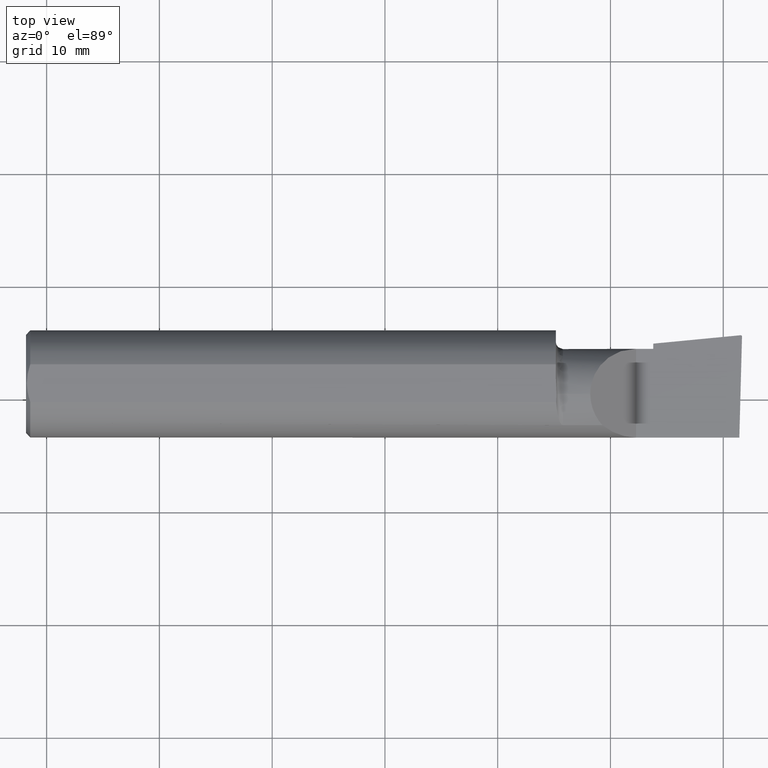
[diagram: clean part render]
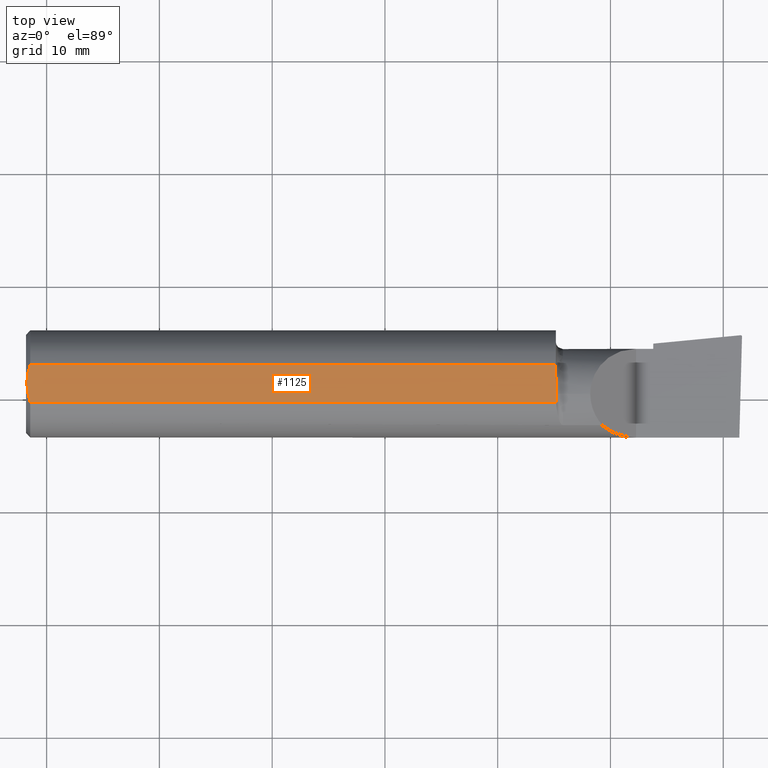
[diagram: same view with one face highlighted and labeled with its STEP entity id]
A machine part, top view. The second image highlights one B-rep face of the part: STEP entity #1125.
In plain terms, the highlighted planar face has unit normal (0, 0, -1).
Its self-contained STEP definition (entity closure, byte-faithful):
#7 = CARTESIAN_POINT ( 'NONE',  ( 1.851937530487825168, -0.03734999999999997350, 0.1753499999999999504 ) ) ;
#14 = VERTEX_POINT ( 'NONE', #1193 ) ;
#16 = CARTESIAN_POINT ( 'NONE',  ( 1.851937530487825168, -0.03734999999999997350, 0.1753499999999999504 ) ) ;
#31 = VECTOR ( 'NONE', #447, 39.37007874015748143 ) ;
#50 = VECTOR ( 'NONE', #425, 39.37007874015748143 ) ;
#61 = CARTESIAN_POINT ( 'NONE',  ( 2.500000000000000000, -0.06597272163553667690, 0.1753499999999999504 ) ) ;
#84 = CARTESIAN_POINT ( 'NONE',  ( 2.500000000000000000, 0.06597272163553667690, 0.1753499999999999504 ) ) ;
#128 = VERTEX_POINT ( 'NONE', #16 ) ;
#140 = PLANE ( 'NONE',  #280 ) ;
#151 = DIRECTION ( 'NONE',  ( -0.000000000000000000, 0.000000000000000000, -1.000000000000000000 ) ) ;
#198 = EDGE_CURVE ( 'NONE', #810, #1157, #704, .T. ) ;
#201 = CARTESIAN_POINT ( 'NONE',  ( 1.851937530487825168, -0.04689278429336164733, 0.1753499999999999504 ) ) ;
#254 = CARTESIAN_POINT ( 'NONE',  ( 1.850000000000000311, 0.06597272163553667690, 0.1753499999999999504 ) ) ;
#280 = AXIS2_PLACEMENT_3D ( 'NONE', #744, #151, #927 ) ;
#317 = EDGE_CURVE ( 'NONE', #874, #810, #1156, .T. ) ;
#318 = ORIENTED_EDGE ( 'NONE', *, *, #317, .T. ) ;
#354 = CARTESIAN_POINT ( 'NONE',  ( 1.851545130889652668, -0.01769637300185313705, 0.1753499999999999781 ) ) ;
#365 = CARTESIAN_POINT ( 'NONE',  ( 1.850566974906936224, 0.001953606026207257377, 0.1753499999999999504 ) ) ;
#395 = CARTESIAN_POINT ( 'NONE',  ( 0.01499999999999970281, 0.06597272163553667690, 0.1753499999999999504 ) ) ;
#400 = CARTESIAN_POINT ( 'NONE',  ( 0.002999999999999556841, 2.147418157515057056E-17, 0.1753499999999999504 ) ) ;
#414 = LINE ( 'NONE', #522, #50 ) ;
#423 = VECTOR ( 'NONE', #474, 39.37007874015748143 ) ;
#425 = DIRECTION ( 'NONE',  ( 0.000000000000000000, -1.000000000000000000, 0.000000000000000000 ) ) ;
#447 = DIRECTION ( 'NONE',  ( -1.000000000000000000, -0.000000000000000000, -0.000000000000000000 ) ) ;
#450 = ORIENTED_EDGE ( 'NONE', *, *, #1000, .F. ) ;
#462 = B_SPLINE_CURVE_WITH_KNOTS ( 'NONE', 3,
 ( #760, #953, #201, #7 ),
 .UNSPECIFIED., .F., .F.,
 ( 4, 4 ),
 ( 6.505213034913025641E-19, 0.0007271437858820414910 ),
 .UNSPECIFIED. ) ;
#474 = DIRECTION ( 'NONE',  ( 1.000000000000000000, 0.000000000000000000, 0.000000000000000000 ) ) ;
#479 = B_SPLINE_CURVE_WITH_KNOTS ( 'NONE', 3,
 ( #835, #823, #354, #365, #722, #940 ),
 .UNSPECIFIED., .F., .F.,
 ( 4, 2, 4 ),
 ( 0.0007271437858820414910, 0.001475770295146546039, 0.002224396804411050803 ),
 .UNSPECIFIED. ) ;
#522 = CARTESIAN_POINT ( 'NONE',  ( 1.850000000000000311, 0.1000000000000000056, 0.1753499999999999504 ) ) ;
#595 = CARTESIAN_POINT ( 'NONE',  ( 0.007501547290577734520, -0.04467854003619180919, 0.1753499999999999504 ) ) ;
#631 = LINE ( 'NONE', #61, #31 ) ;
#704 = B_SPLINE_CURVE_WITH_KNOTS ( 'NONE', 3,
 ( #400, #1209, #595, #992 ),
 .UNSPECIFIED., .F., .F.,
 ( 4, 4 ),
 ( 0.005453502051446296704, 0.007150910976410299741 ),
 .UNSPECIFIED. ) ;
#722 = CARTESIAN_POINT ( 'NONE',  ( 1.850000000000000533, 0.01177561974825833656, 0.1753499999999999504 ) ) ;
#729 = FACE_OUTER_BOUND ( 'NONE', #1160, .T. ) ;
#734 = CARTESIAN_POINT ( 'NONE',  ( 0.01499999999999970281, -0.06597272163553674629, 0.1753499999999999504 ) ) ;
#738 = CARTESIAN_POINT ( 'NONE',  ( 0.002999999999999554239, 0.02270494013651297438, 0.1753499999999999504 ) ) ;
#744 = CARTESIAN_POINT ( 'NONE',  ( 0.000000000000000000, 0.1000000000000000056, 0.1753499999999999504 ) ) ;
#760 = CARTESIAN_POINT ( 'NONE',  ( 1.851098502765448073, -0.06597272163553667690, 0.1753499999999999504 ) ) ;
#787 = ORIENTED_EDGE ( 'NONE', *, *, #1151, .F. ) ;
#810 = VERTEX_POINT ( 'NONE', #817 ) ;
#817 = CARTESIAN_POINT ( 'NONE',  ( 0.002999999999999556841, 2.147418157515057056E-17, 0.1753499999999999504 ) ) ;
#823 = CARTESIAN_POINT ( 'NONE',  ( 1.851937530487824946, -0.02752528385319595941, 0.1753499999999999781 ) ) ;
#835 = CARTESIAN_POINT ( 'NONE',  ( 1.851937530487825168, -0.03734999999999997350, 0.1753499999999999504 ) ) ;
#837 = CARTESIAN_POINT ( 'NONE',  ( 0.002999999999999556841, 2.147418157515057056E-17, 0.1753499999999999504 ) ) ;
#867 = ORIENTED_EDGE ( 'NONE', *, *, #198, .T. ) ;
#874 = VERTEX_POINT ( 'NONE', #395 ) ;
#896 = EDGE_CURVE ( 'NONE', #874, #1074, #954, .T. ) ;
#927 = DIRECTION ( 'NONE',  ( -1.000000000000000000, 0.000000000000000000, 0.000000000000000000 ) ) ;
#938 = ORIENTED_EDGE ( 'NONE', *, *, #1087, .T. ) ;
#940 = CARTESIAN_POINT ( 'NONE',  ( 1.850000000000000311, 0.02161929285653694036, 0.1753499999999999504 ) ) ;
#953 = CARTESIAN_POINT ( 'NONE',  ( 1.851569765136997114, -0.05643310028136025447, 0.1753499999999999504 ) ) ;
#954 = LINE ( 'NONE', #84, #423 ) ;
#992 = CARTESIAN_POINT ( 'NONE',  ( 0.01499999999999970281, -0.06597272163553674629, 0.1753499999999999504 ) ) ;
#1000 = EDGE_CURVE ( 'NONE', #1074, #1197, #414, .T. ) ;
#1031 = CARTESIAN_POINT ( 'NONE',  ( 0.01499999999999970281, 0.06597272163553667690, 0.1753499999999999504 ) ) ;
#1071 = ORIENTED_EDGE ( 'NONE', *, *, #896, .F. ) ;
#1074 = VERTEX_POINT ( 'NONE', #254 ) ;
#1087 = EDGE_CURVE ( 'NONE', #128, #1197, #479, .T. ) ;
#1112 = CARTESIAN_POINT ( 'NONE',  ( 0.007477619062988611308, 0.04461058841425279142, 0.1753499999999999504 ) ) ;
#1125 = ADVANCED_FACE ( 'NONE', ( #729 ), #140, .F. ) ;
#1151 = EDGE_CURVE ( 'NONE', #14, #1157, #631, .T. ) ;
#1156 = B_SPLINE_CURVE_WITH_KNOTS ( 'NONE', 3,
 ( #1031, #1112, #738, #837 ),
 .UNSPECIFIED., .F., .F.,
 ( 4, 4 ),
 ( 0.003757229488784579168, 0.005453502051446296704 ),
 .UNSPECIFIED. ) ;
#1157 = VERTEX_POINT ( 'NONE', #734 ) ;
#1160 = EDGE_LOOP ( 'NONE', ( #450, #1071, #318, #867, #787, #1184, #938 ) ) ;
#1184 = ORIENTED_EDGE ( 'NONE', *, *, #1194, .T. ) ;
#1193 = CARTESIAN_POINT ( 'NONE',  ( 1.851098502765448073, -0.06597272163553667690, 0.1753499999999999504 ) ) ;
#1194 = EDGE_CURVE ( 'NONE', #14, #128, #462, .T. ) ;
#1197 = VERTEX_POINT ( 'NONE', #1242 ) ;
#1209 = CARTESIAN_POINT ( 'NONE',  ( 0.002999999999999548167, -0.02272015056826471799, 0.1753499999999999504 ) ) ;
#1242 = CARTESIAN_POINT ( 'NONE',  ( 1.850000000000000311, 0.02161929285653694036, 0.1753499999999999504 ) ) ;